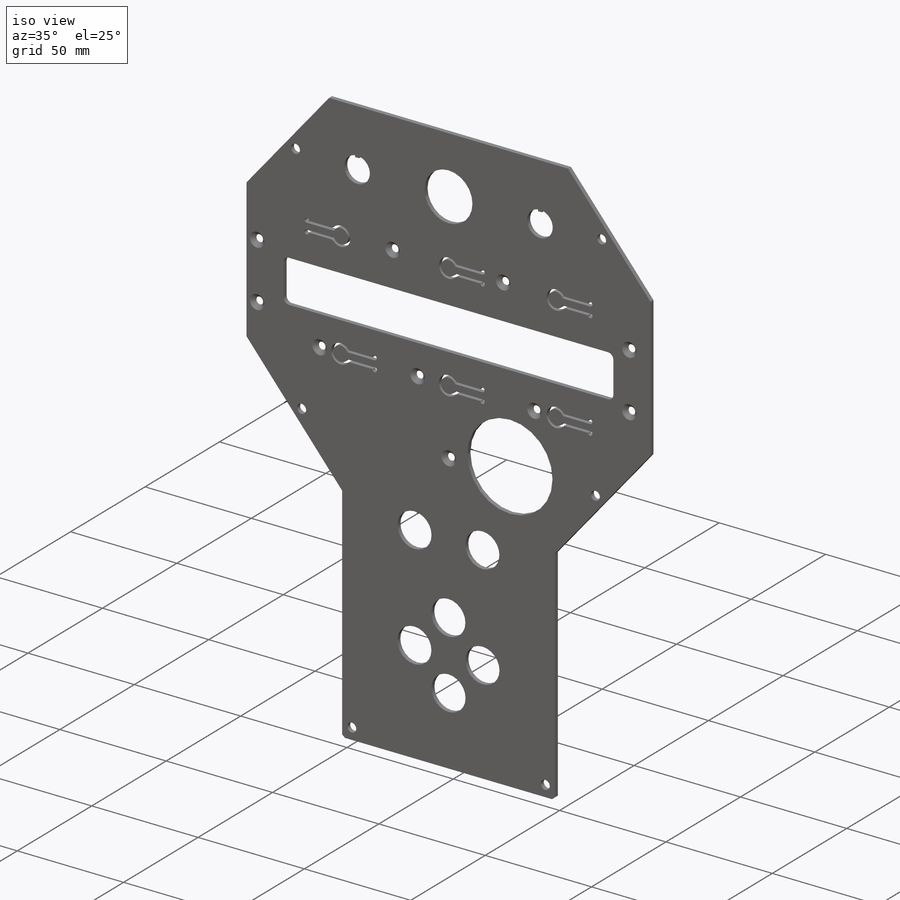
[diagram: iso view]
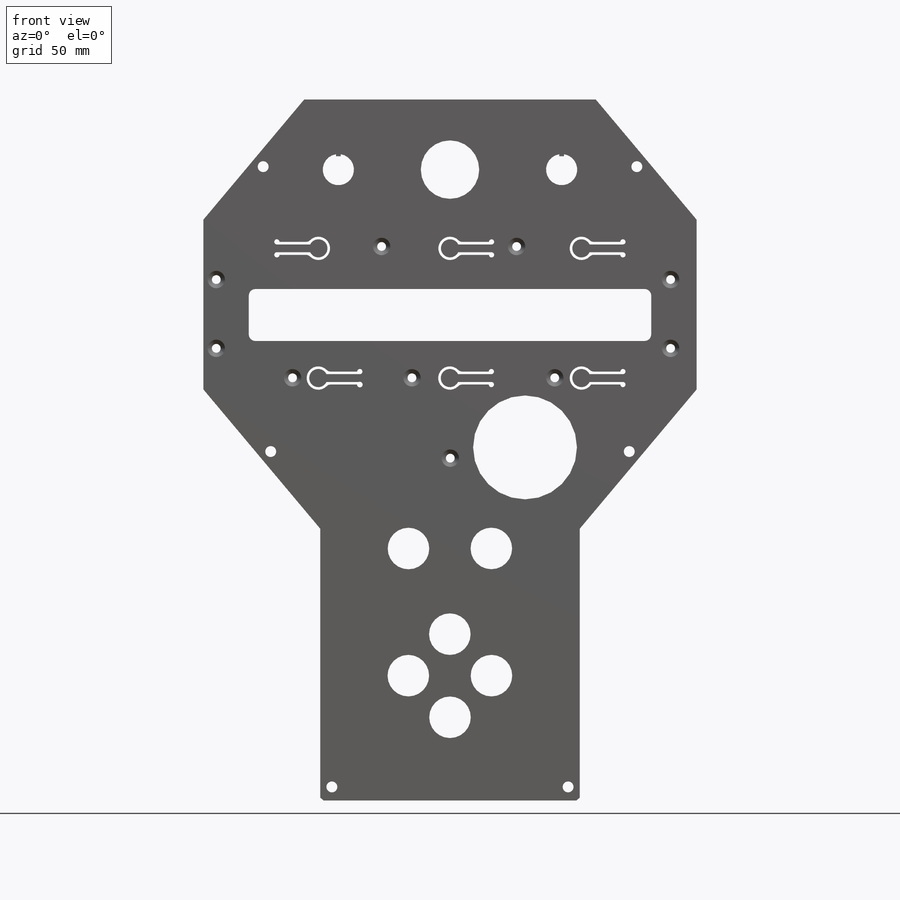
[diagram: front view]
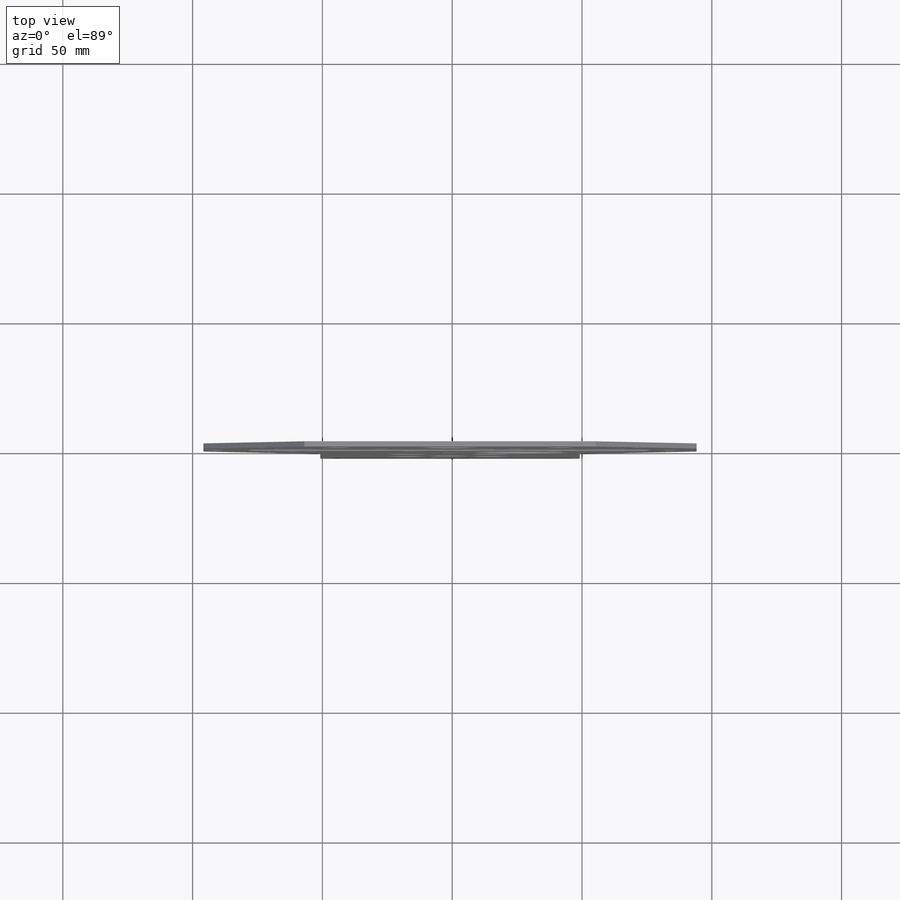
[diagram: top view]
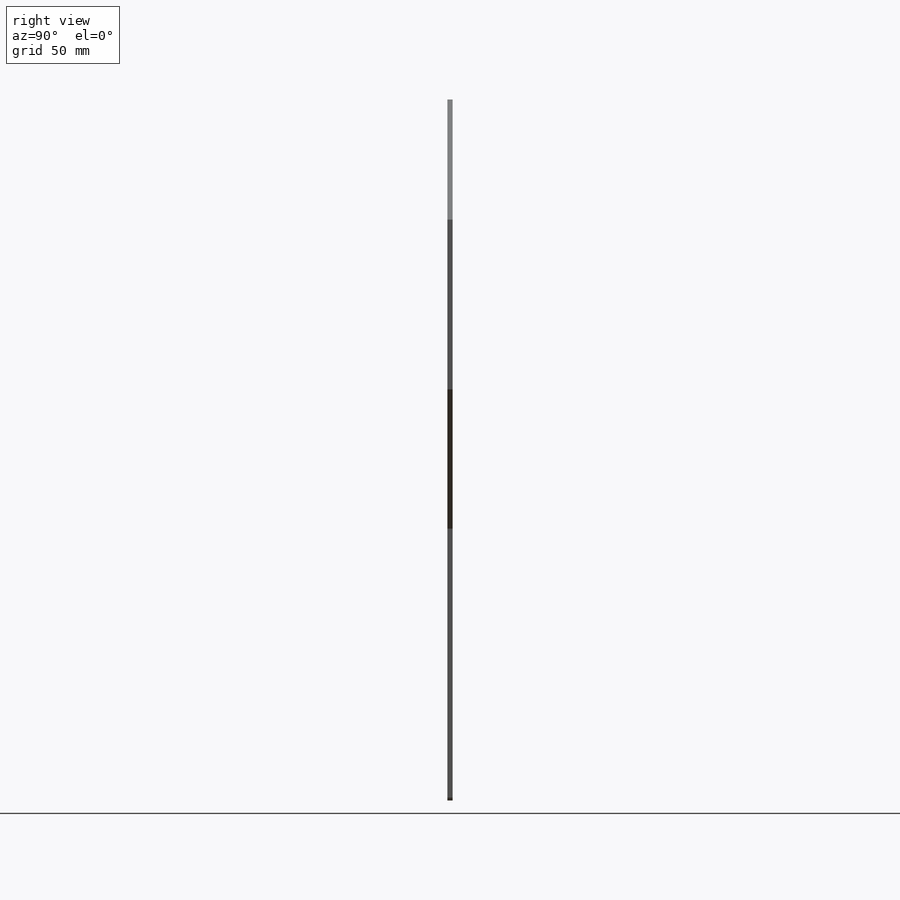
[diagram: right view]
SOLIDWORKS PART (.sldprt)
format: sldprt  version: not decoded by parser v0  size: 691,200 bytes
history: native  units: mm
features: sketch x9, cut_extrude x5, plane x3, material x1, extrude x1, hole x1, fillet x1 (+9 scaffold rows collapsed)
feature tree (30):
  scaffold x9  (default folders/planes/origin — collapsed)
  material  "Material <não especificado>"
  plane  "Plano frontal"
  plane  "Plano superior"
  plane  "Plano direito"
  sketch  "Esboço1"
  extrude  "Ressalto-extrusão1"  Depth=2mm
  sketch  "Esboço2"  dims[c1.D1=4.0mm c1.D2=4.0mm c1.D3=4.0mm c1.D5=4.0mm c1.D6=4.0mm c1.D7=4.0mm c1.D8=4.0mm c2.D1=4.0mm c2.D2=4.0mm c2.D3=4.0mm c2.D4=4.0mm c2.D6=4.0mm c2.D7=4.0mm c2.D9=4.0mm c3.D2=4.0mm c3.D3=4.0mm c3.D4=4.0mm c3.D5=4.0mm c4.D3=4.0mm c4.D5=2.0mm c4.D1=4.2mm c4.D2=4.2mm c5.D3=4.2mm c5.D1=4.2mm c5.D2=4.2mm c6.D3=4.2mm c6.D2=4.2mm c7.D3=4.2mm c7.D4=4.2mm c8.D3=~10.443482mm c8.D5=4.2mm c8.D7=4.2mm c9.D3=4.2mm c9.D6=4.2mm c9.D9=4.2mm c9.D10=4.2mm c9.D4=4.2mm c9.D11=4.2mm c10.D3=~4.189654mm c10.D1=5.0mm c10.D2=5.0mm c11.D3=16.0mm c11.D4=29.0mm c11.D5=5.0mm c11.D6=5.0mm c11.D7=15.0mm c11.D8=30.0mm c11.D1=5.0mm c11.D2=5.0mm c12.D3=16.0mm c12.D4=29.0mm c12.D5=5.0mm c12.D6=15.0mm c12.D7=5.0mm c12.D9=~54.285525mm c12.D1=16.0mm c12.D2=5.0mm c13.D1=~26.355396mm c13.D3=5.0mm c13.D4=15.0mm c13.D5=~26.355396mm c14.D3=5.0mm c14.D4=~11.465352mm c14.D1=5.0mm c14.D2=~5.695122mm c15.D3=5.0mm c15.D4=~300.239635mm c15.D1=4.4mm c15.D2=5.0mm c16.D3=5.0mm c16.D2=4.5mm c17.D3=~27.635295mm c18.D3=50.0deg c19.D3=~17.763625mm c20.D3=50.0deg c20.D4=~5.725995mm c21.D3=5.0mm c21.D5=4.5mm c21.D6=10.0mm c21.D1=~23.028584mm c21.D7=~25.859723mm c22.D3=~25.830222mm c22.D8=~135.769947mm c22.D6=~82.685653mm c22.D9=~26.040222mm c22.D10=~136.019947mm c22.D11=~6.876874mm c22.D4=~5.225995mm c23.D11=4.5mm c23.D3=4.5mm]
  cut_extrude  "Corte-extrusão1"  [1 undecoded]
  sketch  "Esboço3"  dims[c1.D1=~31.18644mm c1.D2=~172.658153mm c2.D1=~174.07125mm c3.D1=50.0deg c4.D1=175.0mm c4.D2=155.0mm c4.D3=20.0mm c4.D4=18.5mm c4.D5=20.0mm c4.D6=~55.048667mm c5.D5=20.0mm c5.D1=175.0mm c5.D4=17.5mm c6.D5=177.0mm]
  cut_extrude  "Corte-extrusão2"  [1 undecoded]
  sketch  "Esboço4"  dims[c1.D1=40.0mm c1.D2=40.0mm c1.D3=19.0mm c2.D1=39.0mm c2.D2=39.0mm c2.D3=19.5mm c3.D2=40.0mm c3.D1=40.0mm c4.D2=40.0mm c4.D1=134.0mm c5.D2=59.0mm c5.D1=58.7mm c6.D2=134.0mm c6.D1=136.0mm c7.D2=~66.100697mm]
  cut_extrude  "Corte-extrusão3"  [1 undecoded]
  sketch  "Esboço5"  dims[c1.D1=16.0mm c1.D2=~15.789622mm c1.D3=~15.789622mm c1.D4=~14.690797mm c1.D5=~14.690797mm c1.D6=16.0mm c1.D7=16.0mm c1.D8=16.0mm c1.D9=16.0mm c1.D10=16.0mm c1.D11=30.0mm c1.D12=12.0mm c1.D13=30.0mm c1.D14=22.5mm c1.D15=12.0mm c1.D16=12.0mm c1.D17=16.0mm c1.D18=16.0mm c2.D3=~9.550623mm c2.D1=42.0mm c2.D2=22.0mm c3.D3=22.0mm c3.D4=22.0mm c3.D5=22.0mm c3.D6=22.0mm c3.D7=22.0mm c3.D8=20.0mm c3.D9=20.0mm c3.D10=22.0mm c3.D11=27.0mm c3.D12=43.0mm c3.D13=43.0mm c3.D18=1.8mm c3.D19=0.9mm c3.D20=0.8mm c3.D21=1.8mm c3.D22=0.9mm c3.D23=0.8mm]
  cut_extrude  "Corte-extrusão4"  [1 undecoded]
  sketch  "Esboço10"  dims[c1.D1=~3.499998mm c1.D2=~3.499998mm c1.D3=~3.499998mm c2.D2=~3.499998mm c2.D1=~3.499998mm c2.D3=~3.499998mm c2.D4=~3.499998mm c2.D5=~3.499998mm c3.D1=~69.340071mm c3.D2=~16.124959mm c3.D3=~16.124959mm c4.D2=~16.124959mm c4.D1=~69.340071mm c5.D2=16.39mm c5.D3=52.0mm c5.D4=30.95mm c5.D5=14.75mm]
  hole  "Escareado para parafuso Allen sextavado escareado de M32"  Diameter=3.4mm Depth=2mm
  sketch  "3DSketch3"
  sketch  "Esboço11"  dims[hole-wizard template sketch: 56 standard entries collapsed; hole parameters kept: c17.Near C'Sink Dia.=6.72mm c17.D4=~3.666174mm c17.Near C'Sink Angle=90.0deg]
  sketch  "Esboço12"  dims[c1.D1=20.0mm c1.D2=10.0mm c1.D3=10.0mm c1.D4=10.0mm c1.D5=9.0mm c1.D6=9.0mm c1.D7=9.0mm c1.D8=9.0mm c1.D9=~3.452699mm c1.D13=~1.424419mm c1.D14=4.5mm c1.D15=3.5mm c1.D16=4.0mm c1.D17=4.0mm c1.D10=0.5mm c2.D17=0.5mm c2.D18=~1.861907mm c2.D22=~1.890197mm c2.D19=4.5mm c3.D22=3.5mm c3.D27=0.5mm c3.D29=0.5mm c3.D30=~2.603798mm c3.D33=4.5mm c3.D34=3.5mm c3.D36=~1.710593mm c4.D30=3.5mm c4.D31=0.5mm c4.D37=0.5mm c4.D38=~2.810249mm c4.D42=~1.671389mm c5.D38=4.5mm c5.D39=3.5mm c5.D44=~3.626867mm c5.D46=4.5mm c5.D47=3.5mm c5.D48=~1.407397mm c5.D45=1.0mm c6.D48=~3.321121mm c6.D50=4.5mm c6.D51=3.5mm c6.D53=3.5mm c6.D52=2.0mm c6.D13=~1.215225mm c6.D16=3.5mm c6.D17=4.5mm c6.D18=3.5mm c6.D19=3.5mm c6.D21=3.5mm c6.D22=3.5mm c6.D25=~1.879187mm c6.D1=14.25mm c6.D2=14.29mm c6.D3=55.0mm c6.D4=52.0mm c6.D5=15.67mm c6.D6=44.39mm c6.D7=50.6mm c6.D8=50.7mm c6.D9=3.0mm c6.D10=1.0mm c6.D11=1.0mm c6.D12=1.5mm c7.D13=13.0mm c7.D16=13.0mm c7.D17=2.9mm c7.D10=~5.899251mm c7.D11=5.0mm c8.D17=3.0mm c8.D18=1.0mm c8.D19=1.0mm c8.D20=3.0mm c8.D21=1.5mm c9.D18=13.0mm c9.D23=1.0mm c9.D24=1.0mm c9.D25=1.0mm c9.D26=1.0mm c9.D27=~5.299632mm c9.D28=5.0mm c9.D29=3.0mm c9.D30=1.0mm c9.D31=1.0mm c9.D32=3.0mm c9.D35=1.5mm c10.D30=13.0mm c10.D31=5.0mm c10.D36=5.0mm c10.D37=3.0mm c10.D38=1.0mm c10.D39=1.0mm c10.D40=3.0mm c10.D41=1.5mm c10.D42=1.0mm c10.D43=1.0mm c10.D44=1.0mm c10.D45=1.0mm c10.D48=3.0mm c10.D49=1.5mm c11.D44=16.0mm c11.D45=16.0mm c11.D48=1.0mm c11.D49=1.0mm c11.D52=3.0mm c11.D53=1.5mm c12.D52=16.0mm c12.D9=1.0mm c12.D10=1.0mm c12.D11=3.0mm c12.D12=1.5mm c12.D13=16.0mm c12.D16=~24.277397mm c12.D17=11.563mm c12.D18=16.0mm c12.D19=~40.389713mm c12.D20=50.67mm c12.D21=50.67mm c12.D22=~3.096563mm c12.D23=1.0mm c12.D24=1.5mm c13.D23=16.0mm c13.D24=~40.521822mm c13.D19=44.39mm]
  cut_extrude  "Corte-extrusão5"  Depth=10mm
  fillet  "Filete1"  Radius=2mm
decode coverage: 11 of 17 modeling features carry decoded parameters
note: ~ marks probable driven/reference dimensions
note: 4 parameter values undecoded
summary: no parameter record found for 4 features
note: suppression state not decoded; provenance and decode notes live in map.json
